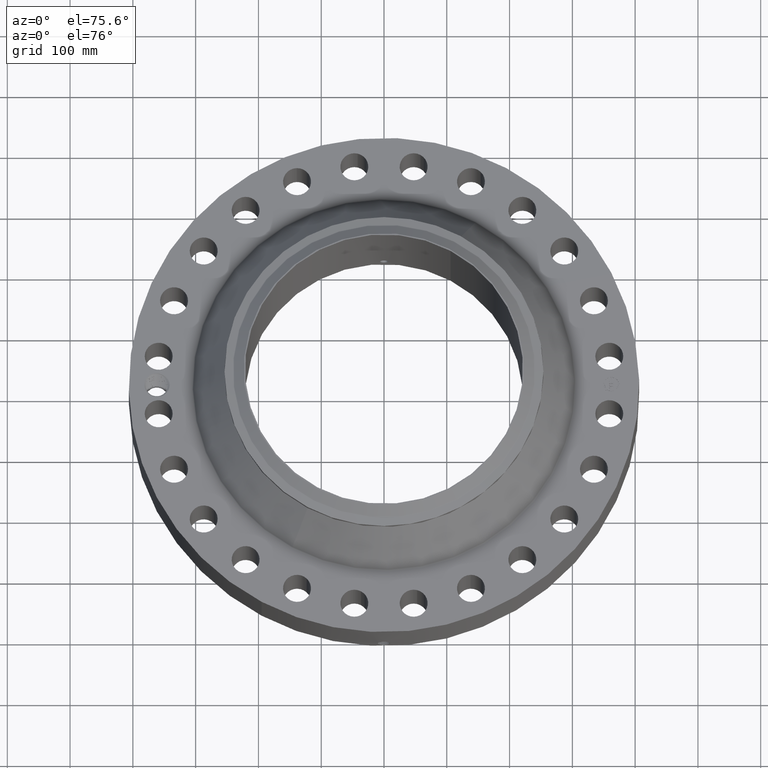
[diagram: clean part render]
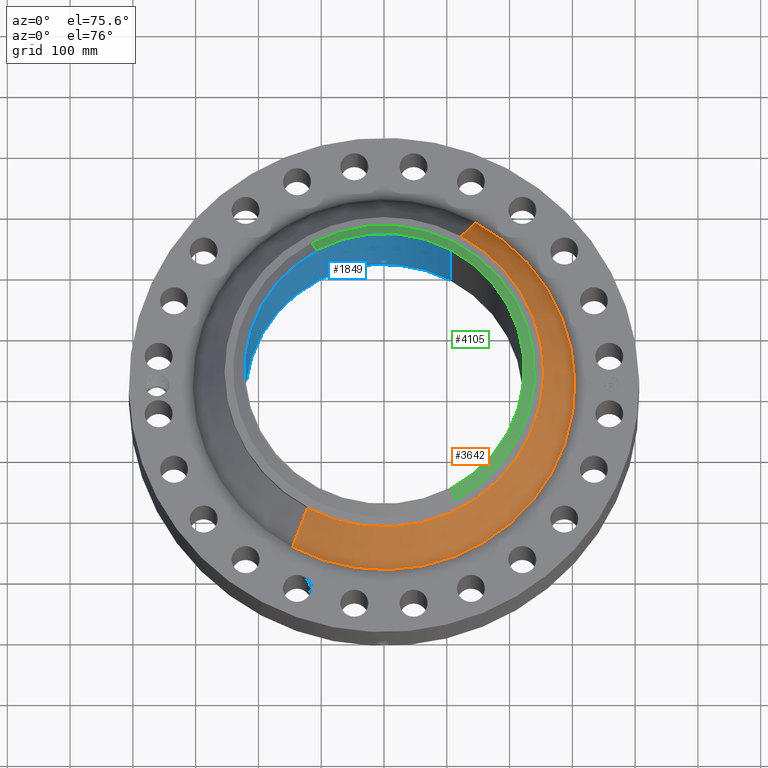
[diagram: same view with three faces highlighted in distinct colors, each labeled with its STEP entity id]
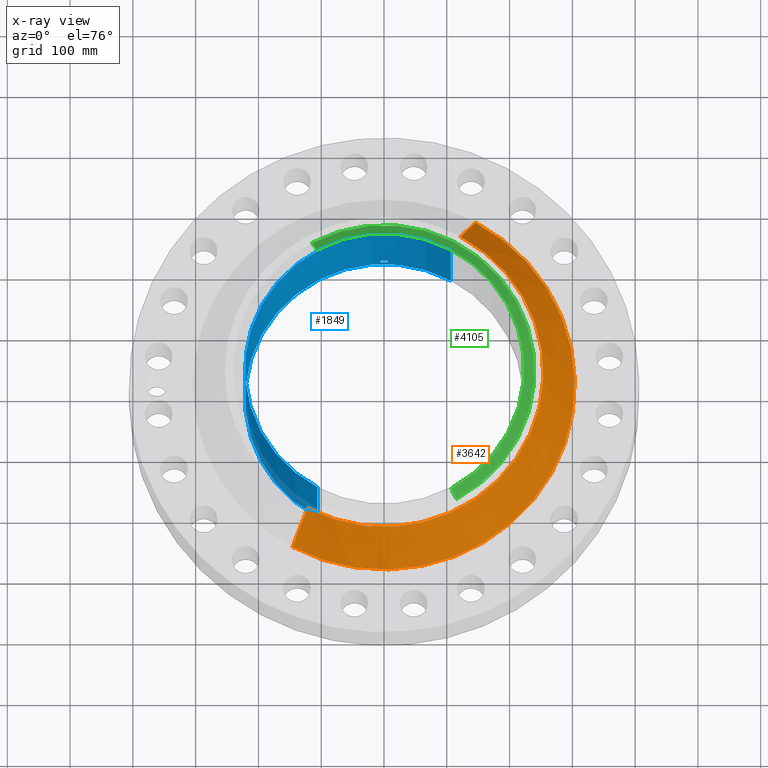
[diagram: x-ray of the same camera — body ghosted, the three highlighted faces saturated]
A machine part, auxiliary view with three faces highlighted in distinct colors.
The next image is the same camera in x-ray (body ghosted, the three faces saturated) — at least one of them is partly hidden behind the body in this view.
Their STEP definitions:

[orange] entity #3642 — the highlighted conical surface has half-angle 32.361 deg.
#2917=AXIS2_PLACEMENT_3D('Circle Axis2P3D',#2915,#2916,$) ;
#3615=AXIS2_PLACEMENT_3D('Cone Axis2P3D',#3612,#3613,#3614) ;
#3626=AXIS2_PLACEMENT_3D('Circle Axis2P3D',#3624,#3625,$) ;
#2912=CARTESIAN_POINT('Vertex',(5.73616387529,10.4999775435,3.80576969427)) ;
#2915=CARTESIAN_POINT('Axis2P3D Location',(0.,0.,3.80576969427)) ;
#2919=CARTESIAN_POINT('Vertex',(-5.73616387529,-10.4999775435,3.80576969427)) ;
#3612=CARTESIAN_POINT('Axis2P3D Location',(0.,0.,6.90623749356)) ;
#3617=CARTESIAN_POINT('Line Origine',(5.26520963068,9.6379015812,5.35600359392)) ;
#3621=CARTESIAN_POINT('Vertex',(4.79425538606,8.77582561894,6.90623749356)) ;
#3624=CARTESIAN_POINT('Axis2P3D Location',(0.,0.,6.90623749356)) ;
#3628=CARTESIAN_POINT('Vertex',(-4.79425538606,-8.77582561894,6.90623749356)) ;
#3631=CARTESIAN_POINT('Line Origine',(-5.26520963068,-9.6379015812,5.35600359392)) ;
#2916=DIRECTION('Axis2P3D Direction',(0.,0.,-0.0393700787402)) ;
#3613=DIRECTION('Axis2P3D Direction',(0.,0.,-0.0393700787402)) ;
#3614=DIRECTION('Axis2P3D XDirection',(-0.0188750212049,-0.0345504945626,0.)) ;
#3618=DIRECTION('Vector Direction',(0.0101029031905,0.0184932402439,-0.0332555937011)) ;
#3625=DIRECTION('Axis2P3D Direction',(0.,0.,-0.0393700787402)) ;
#3632=DIRECTION('Vector Direction',(-0.0101029031905,-0.0184932402439,-0.0332555937011)) ;
#3619=VECTOR('Line Direction',#3618,0.0393700787402) ;
#3633=VECTOR('Line Direction',#3632,0.0393700787402) ;
#3637=ORIENTED_EDGE('',*,*,#2921,.F.) ;
#3638=ORIENTED_EDGE('',*,*,#3623,.T.) ;
#3639=ORIENTED_EDGE('',*,*,#3630,.T.) ;
#3640=ORIENTED_EDGE('',*,*,#3635,.F.) ;
#3642=ADVANCED_FACE('PartBody',(#3641),#3616,.T.) ;
#2918=CIRCLE('generated circle',#2917,11.9646606478) ;
#3627=CIRCLE('generated circle',#3626,10.) ;
#3616=CONICAL_SURFACE('Cone',#3615,10.,0.56480670096) ;
#2921=EDGE_CURVE('',#2913,#2920,#2918,.T.) ;
#3623=EDGE_CURVE('',#2913,#3622,#3620,.F.) ;
#3630=EDGE_CURVE('',#3622,#3629,#3627,.T.) ;
#3635=EDGE_CURVE('',#2920,#3629,#3634,.F.) ;
#3636=EDGE_LOOP('',(#3637,#3638,#3639,#3640)) ;
#3641=FACE_OUTER_BOUND('',#3636,.T.) ;
#3620=LINE('Line',#3617,#3619) ;
#3634=LINE('Line',#3631,#3633) ;
#2913=VERTEX_POINT('',#2912) ;
#2920=VERTEX_POINT('',#2919) ;
#3622=VERTEX_POINT('',#3621) ;
#3629=VERTEX_POINT('',#3628) ;

[blue] entity #1849 — the highlighted cylindrical surface (partial cylindrical patch) has radius 221.463 mm, axis along (0, 0, -1).
#263=AXIS2_PLACEMENT_3D('Circle Axis2P3D',#261,#262,$) ;
#1726=AXIS2_PLACEMENT_3D('Cylinder Axis2P3D',#1723,#1724,#1725) ;
#1798=AXIS2_PLACEMENT_3D('Circle Axis2P3D',#1796,#1797,$) ;
#256=CARTESIAN_POINT('Vertex',(4.18011127111,7.65164235715,0.250000000001)) ;
#258=CARTESIAN_POINT('Vertex',(-4.18011127111,-7.65164235715,0.250000000001)) ;
#261=CARTESIAN_POINT('Axis2P3D Location',(0.,0.,0.250000000001)) ;
#1723=CARTESIAN_POINT('Axis2P3D Location',(0.,0.,4.00000000002)) ;
#1732=CARTESIAN_POINT('Vertex',(4.18011127111,7.65164235715,7.75000000003)) ;
#1734=CARTESIAN_POINT('Vertex',(-4.18011127111,-7.65164235715,7.75000000003)) ;
#1737=CARTESIAN_POINT('Line Origine',(4.18011127111,7.65164235715,4.00000000002)) ;
#1742=CARTESIAN_POINT('Line Origine',(-4.18011127111,-7.65164235715,4.00000000002)) ;
#1796=CARTESIAN_POINT('Axis2P3D Location',(0.,0.,7.75000000003)) ;
#1808=CARTESIAN_POINT('Control Point',(0.219395640473,8.71623924371,1.05985638466)) ;
#1809=CARTESIAN_POINT('Control Point',(0.194443074445,8.71686732241,1.1055317504)) ;
#1810=CARTESIAN_POINT('Control Point',(0.15760547492,8.71770520985,1.14471132174)) ;
#1811=CARTESIAN_POINT('Control Point',(0.111108534884,8.71852008095,1.17324286874)) ;
#1812=CARTESIAN_POINT('Control Point',(0.0336738365688,8.719168421,1.19588251347)) ;
#1813=CARTESIAN_POINT('Control Point',(-0.0446707087437,8.71894438224,1.18805642282)) ;
#1814=CARTESIAN_POINT('Control Point',(-0.0703003633486,8.71877045921,1.18204387107)) ;
#1815=CARTESIAN_POINT('Control Point',(-0.14395636843,8.71800187849,1.1542120648)) ;
#1816=CARTESIAN_POINT('Control Point',(-0.203243862936,8.71674733143,1.09949782426)) ;
#1817=CARTESIAN_POINT('Control Point',(-0.232209252283,8.71592448257,1.05325894278)) ;
#1818=CARTESIAN_POINT('Control Point',(-0.255840440698,8.71524804043,0.975112097737)) ;
#1819=CARTESIAN_POINT('Control Point',(-0.248282903679,8.71546419705,0.895747229123)) ;
#1820=CARTESIAN_POINT('Control Point',(-0.242049124194,8.71564508117,0.869184542419)) ;
#1821=CARTESIAN_POINT('Control Point',(-0.232315550462,8.71591403787,0.843793351952)) ;
#1822=CARTESIAN_POINT('Control Point',(-0.219395640473,8.71623924371,0.820143615352)) ;
#1823=CARTESIAN_POINT('Vertex',(0.219395640473,8.71623924371,1.05985638466)) ;
#1825=CARTESIAN_POINT('Vertex',(-0.219395640473,8.71623924371,0.820143615352)) ;
#1829=CARTESIAN_POINT('Control Point',(-0.219395640473,8.71623924371,0.820143615352)) ;
#1830=CARTESIAN_POINT('Control Point',(-0.194443074454,8.71686732241,0.774468249628)) ;
#1831=CARTESIAN_POINT('Control Point',(-0.157605474946,8.71770520985,0.735288678297)) ;
#1832=CARTESIAN_POINT('Control Point',(-0.111108534849,8.71852008095,0.706757131255)) ;
#1833=CARTESIAN_POINT('Control Point',(-0.033673836551,8.719168421,0.684117486539)) ;
#1834=CARTESIAN_POINT('Control Point',(0.0446707087438,8.71894438224,0.691943577187)) ;
#1835=CARTESIAN_POINT('Control Point',(0.0703003633475,8.71877045921,0.697956128937)) ;
#1836=CARTESIAN_POINT('Control Point',(0.143956368406,8.71800187849,0.725787935201)) ;
#1837=CARTESIAN_POINT('Control Point',(0.203243862899,8.71674733143,0.780502175713)) ;
#1838=CARTESIAN_POINT('Control Point',(0.232209252297,8.71592448256,0.826741057275)) ;
#1839=CARTESIAN_POINT('Control Point',(0.255840440707,8.71524804043,0.904887902331)) ;
#1840=CARTESIAN_POINT('Control Point',(0.248282903672,8.71546419705,0.984252770959)) ;
#1841=CARTESIAN_POINT('Control Point',(0.242049124221,8.71564508117,1.01081545752)) ;
#1842=CARTESIAN_POINT('Control Point',(0.23231555048,8.71591403786,1.03620664802)) ;
#1843=CARTESIAN_POINT('Control Point',(0.219395640473,8.71623924371,1.05985638466)) ;
#262=DIRECTION('Axis2P3D Direction',(0.,0.,-0.0393700787402)) ;
#1724=DIRECTION('Axis2P3D Direction',(0.,0.,-0.0393700787402)) ;
#1725=DIRECTION('Axis2P3D XDirection',(-0.0188750212049,-0.0345504945626,0.)) ;
#1738=DIRECTION('Vector Direction',(0.,0.,-0.0393700787402)) ;
#1743=DIRECTION('Vector Direction',(0.,0.,-0.0393700787402)) ;
#1797=DIRECTION('Axis2P3D Direction',(0.,0.,-0.0393700787402)) ;
#1739=VECTOR('Line Direction',#1738,0.0393700787402) ;
#1744=VECTOR('Line Direction',#1743,0.0393700787402) ;
#1802=ORIENTED_EDGE('',*,*,#1800,.F.) ;
#1803=ORIENTED_EDGE('',*,*,#1746,.T.) ;
#1804=ORIENTED_EDGE('',*,*,#265,.T.) ;
#1805=ORIENTED_EDGE('',*,*,#1741,.F.) ;
#1846=ORIENTED_EDGE('',*,*,#1827,.F.) ;
#1847=ORIENTED_EDGE('',*,*,#1844,.F.) ;
#1848=FACE_BOUND('',#1845,.T.) ;
#1849=ADVANCED_FACE('PartBody',(#1806,#1848),#1727,.F.) ;
#1807=B_SPLINE_CURVE_WITH_KNOTS('',5,(#1808,#1809,#1810,#1811,#1812,#1813,#1814,#1815,#1816,#1817,#1818,#1819,#1820,#1821,#1822),.UNSPECIFIED.,.F.,.U.,(6,3,3,3,6),(0.,9.34855284859,14.0228568629,23.3728928865,28.2133754721),.UNSPECIFIED.) ;
#1828=B_SPLINE_CURVE_WITH_KNOTS('',5,(#1829,#1830,#1831,#1832,#1833,#1834,#1835,#1836,#1837,#1838,#1839,#1840,#1841,#1842,#1843),.UNSPECIFIED.,.F.,.U.,(6,3,3,3,6),(0.,9.34855284533,14.0228568597,23.372892879,28.2133754713),.UNSPECIFIED.) ;
#264=CIRCLE('generated circle',#263,8.71900000003) ;
#1799=CIRCLE('generated circle',#1798,8.71900000003) ;
#1727=CYLINDRICAL_SURFACE('generated cylinder',#1726,8.71900000003) ;
#265=EDGE_CURVE('',#259,#257,#264,.T.) ;
#1741=EDGE_CURVE('',#1733,#257,#1740,.T.) ;
#1746=EDGE_CURVE('',#1735,#259,#1745,.T.) ;
#1800=EDGE_CURVE('',#1735,#1733,#1799,.T.) ;
#1827=EDGE_CURVE('',#1824,#1826,#1807,.T.) ;
#1844=EDGE_CURVE('',#1826,#1824,#1828,.T.) ;
#1801=EDGE_LOOP('',(#1802,#1803,#1804,#1805)) ;
#1845=EDGE_LOOP('',(#1846,#1847)) ;
#1806=FACE_OUTER_BOUND('',#1801,.T.) ;
#1740=LINE('Line',#1737,#1739) ;
#1745=LINE('Line',#1742,#1744) ;
#257=VERTEX_POINT('',#256) ;
#259=VERTEX_POINT('',#258) ;
#1733=VERTEX_POINT('',#1732) ;
#1735=VERTEX_POINT('',#1734) ;
#1824=VERTEX_POINT('',#1823) ;
#1826=VERTEX_POINT('',#1825) ;

[green] entity #4105 — the highlighted conical surface has half-angle 52.5 deg.
#3246=AXIS2_PLACEMENT_3D('Circle Axis2P3D',#3244,#3245,$) ;
#4066=AXIS2_PLACEMENT_3D('Cone Axis2P3D',#4063,#4064,#4065) ;
#4096=AXIS2_PLACEMENT_3D('Circle Axis2P3D',#4094,#4095,$) ;
#3244=CARTESIAN_POINT('Axis2P3D Location',(0.,0.,7.75000000003)) ;
#3248=CARTESIAN_POINT('Vertex',(4.21786131352,-7.72074334628,7.75000000003)) ;
#3250=CARTESIAN_POINT('Vertex',(-4.21786131352,7.72074334628,7.75000000003)) ;
#4063=CARTESIAN_POINT('Axis2P3D Location',(0.,0.,7.75000000003)) ;
#4068=CARTESIAN_POINT('Line Origine',(-4.37280261607,8.00436149818,7.5020143726)) ;
#4072=CARTESIAN_POINT('Vertex',(-4.52774391862,8.28797965009,7.25402874516)) ;
#4079=CARTESIAN_POINT('Vertex',(4.52774391862,-8.28797965009,7.25402874516)) ;
#4082=CARTESIAN_POINT('Line Origine',(4.37280261607,-8.00436149818,7.5020143726)) ;
#4094=CARTESIAN_POINT('Axis2P3D Location',(0.,0.,7.25402874516)) ;
#3245=DIRECTION('Axis2P3D Direction',(0.,0.,-0.0393700787402)) ;
#4064=DIRECTION('Axis2P3D Direction',(-0.,-0.,-0.0393700787402)) ;
#4065=DIRECTION('Axis2P3D XDirection',(-0.0188750212049,0.0345504945626,0.)) ;
#4069=DIRECTION('Vector Direction',(-0.014974561121,0.02741075027,-0.023966985394)) ;
#4083=DIRECTION('Vector Direction',(0.014974561121,-0.02741075027,-0.023966985394)) ;
#4095=DIRECTION('Axis2P3D Direction',(0.,0.,-0.0393700787402)) ;
#4070=VECTOR('Line Direction',#4069,0.0393700787402) ;
#4084=VECTOR('Line Direction',#4083,0.0393700787402) ;
#4100=ORIENTED_EDGE('',*,*,#3252,.F.) ;
#4101=ORIENTED_EDGE('',*,*,#4086,.T.) ;
#4102=ORIENTED_EDGE('',*,*,#4098,.T.) ;
#4103=ORIENTED_EDGE('',*,*,#4074,.F.) ;
#4105=ADVANCED_FACE('PartBody',(#4104),#4067,.T.) ;
#3247=CIRCLE('generated circle',#3246,8.79774015752) ;
#4097=CIRCLE('generated circle',#4096,9.44410248106) ;
#4067=CONICAL_SURFACE('Cone',#4066,8.79774015752,0.916297857297) ;
#3252=EDGE_CURVE('',#3249,#3251,#3247,.F.) ;
#4074=EDGE_CURVE('',#3251,#4073,#4071,.T.) ;
#4086=EDGE_CURVE('',#3249,#4080,#4085,.T.) ;
#4098=EDGE_CURVE('',#4080,#4073,#4097,.F.) ;
#4099=EDGE_LOOP('',(#4100,#4101,#4102,#4103)) ;
#4104=FACE_OUTER_BOUND('',#4099,.T.) ;
#4071=LINE('Line',#4068,#4070) ;
#4085=LINE('Line',#4082,#4084) ;
#3249=VERTEX_POINT('',#3248) ;
#3251=VERTEX_POINT('',#3250) ;
#4073=VERTEX_POINT('',#4072) ;
#4080=VERTEX_POINT('',#4079) ;